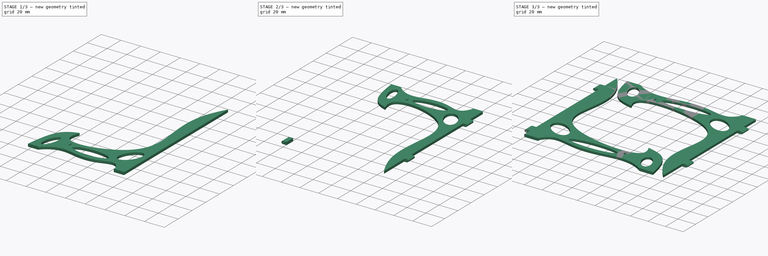
[diagram: build sequence overview — one tinted view per stage of 3, left to right]
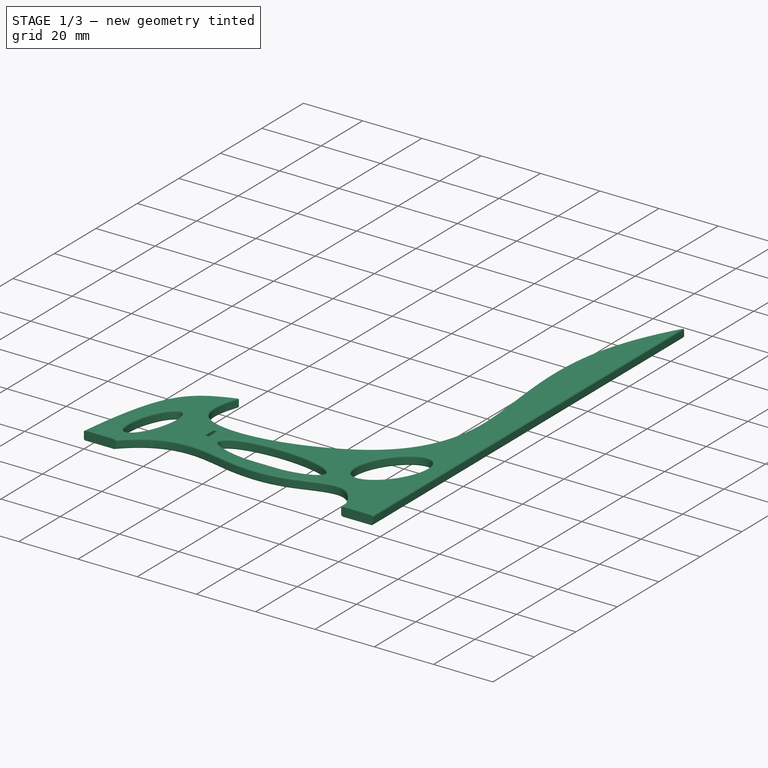
[diagram: stage 1 of 3 — iso view after this stage's code; geometry added in this stage tinted green]
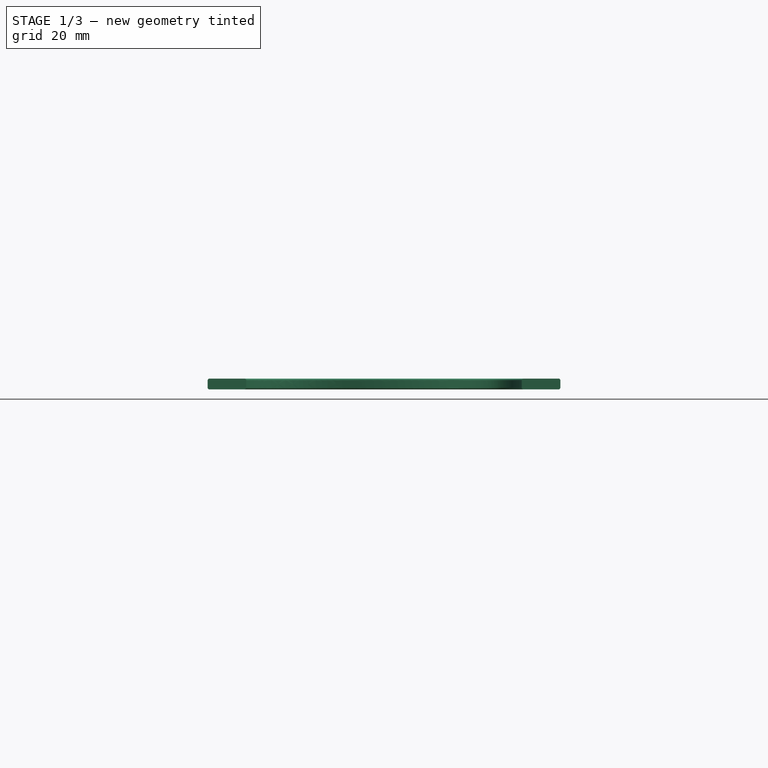
[diagram: stage 1 of 3 — front view after this stage's code; geometry added in this stage tinted green]
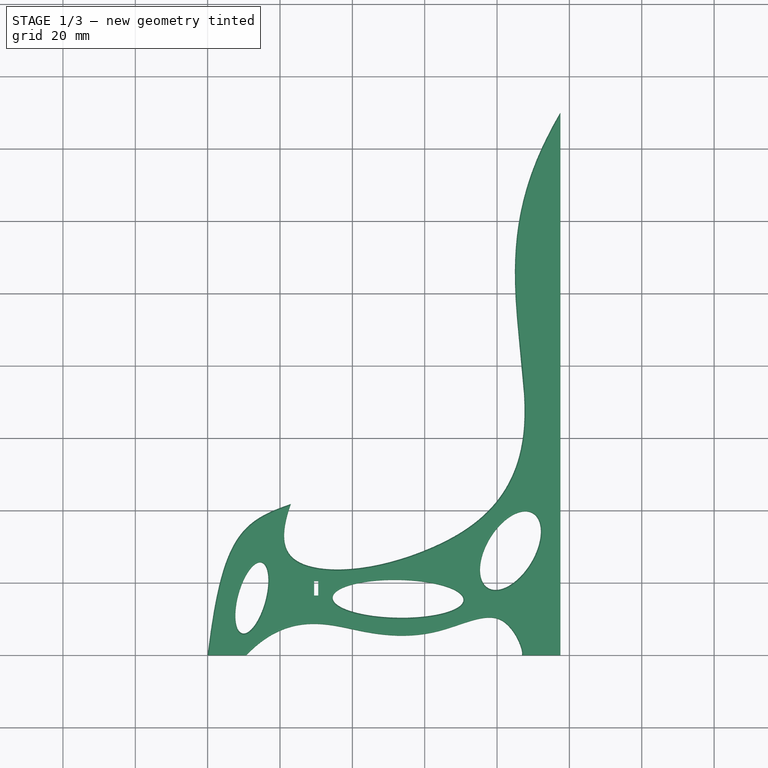
[diagram: stage 1 of 3 — top view after this stage's code; geometry added in this stage tinted green]
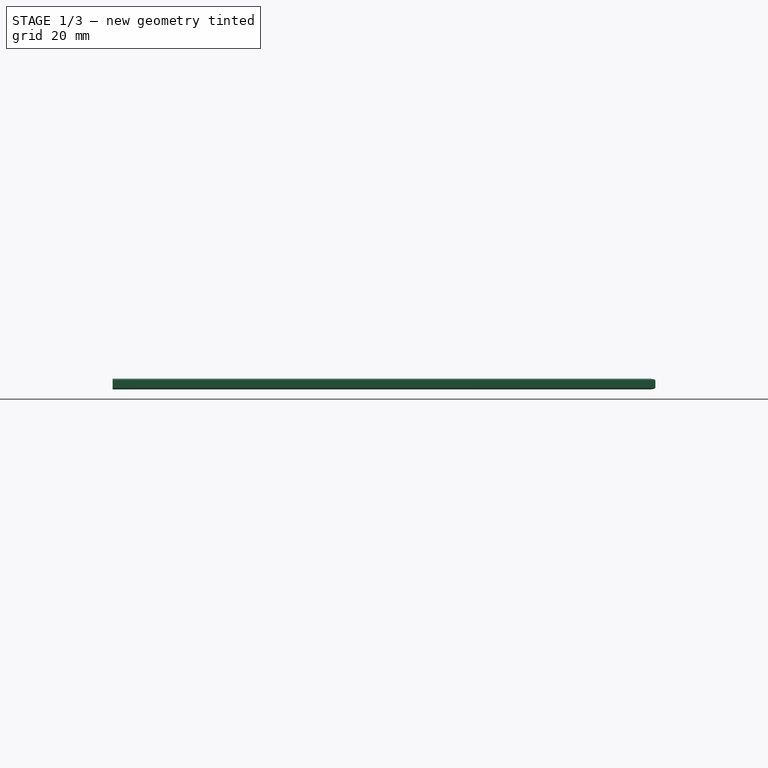
[diagram: stage 1 of 3 — right view after this stage's code; geometry added in this stage tinted green]
FCSTD DOCUMENT  (FreeCAD 0.20R27319 (Git))
Label: Plate Stand pin hinge
License: All rights reserved
LicenseURL: http://en.wikipedia.org/wiki/All_rights_reserved
objects: Part::Feature×3, Part::MultiFuse×3, Sketcher::SketchObject×2, PartDesign::Pad×2, PartDesign::Body×2, Spreadsheet::Sheet×1, PartDesign::Fillet×1, Part::Mirroring×1, Part::FeaturePython×1
note: 18 computed .brp shape members not serialized (recipe doc carries the construction recipe); baked Part::Feature solids carry a one-line shape summary decoded from their .brp

FEATURE [Spreadsheet::Sheet] Spreadsheet
  cells = A1=Height; B1(Height)=150; A2=Depth; B2(Depth)=150; A3=Thickness; B3(Thickness)=3; A4=XScale; B4(XScale)==Depth / 100; A5=YScale; B5(YScale)==Height / 150; A6=ZScale; B6(ZScale)==Thickness / 3; A7=Axle Diameter; B7(AxleDiameter)=1.5
FEATURE [Sketcher::SketchObject] Sketch  label="Right outline"
  FullyConstrained = false
  MapMode = 5
  Support = -> [XY_Plane]
  expr: Constraints[82] = 1.7 / Spreadsheet.XScale
  expr: Constraints[83] = 4 / Spreadsheet.YScale
  sketch-geometry (56):
    g0-g3: Circle x4 (B-spline internal-alignment scaffolding for g4; pole/knot coordinates omitted)
    g4: BSplineCurve PolesCount=4 KnotsCount=2 Degree=3 IsPeriodic=0
    g5: GeomPoint X=76.9837 Y=41.8126 Z=0
    g6: GeomPoint X=100 Y=0 Z=0
    g7: Ellipse CenterX=16.2979 CenterY=28.8898 CenterZ=0 NormalX=0 NormalY=0 NormalZ=1 MajorRadius=12.0183 MinorRadius=6.61155 AngleXU=-1.02723
    g8: LineSegment StartX=22.5137 StartY=18.6037 StartZ=0 EndX=10.0822 EndY=39.176 EndZ=0
    g9: LineSegment StartX=21.9566 StartY=32.3093 StartZ=0 EndX=10.6393 EndY=25.4704 EndZ=0
    g10: GeomPoint X=21.4886 Y=20.3 Z=0
    g11: GeomPoint X=11.1073 Y=37.4797 Z=0
    g12: Ellipse CenterX=87.7776 CenterY=15.8203 CenterZ=0 NormalX=0 NormalY=0 NormalZ=1 MajorRadius=10.1255 MinorRadius=3.83233 AngleXU=-1.30426
    g13: LineSegment StartX=90.4445 StartY=6.05227 StartZ=0 EndX=85.1106 EndY=25.5883 EndZ=0
    g14: LineSegment StartX=91.4746 StartY=16.8297 StartZ=0 EndX=84.0806 EndY=14.8109 EndZ=0
    g15: GeomPoint X=90.2461 Y=6.77893 Z=0
    g16: GeomPoint X=85.309 Y=24.8616 Z=0
    g17: LineSegment StartX=2.5 StartY=0 StartZ=0 EndX=13.1879 EndY=0 EndZ=0
    g18: LineSegment StartX=100 StartY=0 StartZ=0 EndX=89.3121 EndY=0 EndZ=0
    g19-g25: Circle x7 (B-spline internal-alignment scaffolding for g26; pole/knot coordinates omitted)
    g26: BSplineCurve PolesCount=7 KnotsCount=5 Degree=3 IsPeriodic=0
    g27-g31: GeomPoint x5 (B-spline internal-alignment scaffolding for g26; pole/knot coordinates omitted)
    g32: Ellipse CenterX=47.3615 CenterY=15.5825 CenterZ=0 NormalX=0 NormalY=0 NormalZ=1 MajorRadius=18.0781 MinorRadius=5.2221 AngleXU=0.0168016
    g33: LineSegment StartX=65.437 StartY=15.8862 StartZ=0 EndX=29.2859 EndY=15.2788 EndZ=0
    g34: LineSegment StartX=47.2737 StartY=20.8039 StartZ=0 EndX=47.4492 EndY=10.3611 EndZ=0
    g35: GeomPoint X=64.6665 Y=15.8733 Z=0
    g36: GeomPoint X=30.0565 Y=15.2917 Z=0
    g37: LineSegment StartX=2.5 StartY=150 StartZ=0 EndX=2.5 EndY=0 EndZ=0
    g38-g44: Circle x7 (B-spline internal-alignment scaffolding for g45; pole/knot coordinates omitted)
    g45: BSplineCurve PolesCount=7 KnotsCount=5 Degree=3 IsPeriodic=0
    g46-g50: GeomPoint x5 (B-spline internal-alignment scaffolding for g45; pole/knot coordinates omitted)
    g51: LineSegment StartX=69.4333 StartY=20.5 StartZ=0 EndX=69.4333 EndY=16.5 EndZ=0
    g52: LineSegment StartX=69.4333 StartY=16.5 StartZ=0 EndX=70.5667 EndY=16.5 EndZ=0
    g53: LineSegment StartX=70.5667 StartY=16.5 StartZ=0 EndX=70.5667 EndY=20.5 EndZ=0
    g54: LineSegment StartX=70.5667 StartY=20.5 StartZ=0 EndX=69.4333 EndY=20.5 EndZ=0
    g55: GeomPoint X=70 Y=18.5 Z=0
  constraints (47):
    c: PointOnObject(g4,g-1)
    c: Weight(g0) = 1
    c: Equal(g0,g1)
    c: Equal(g0,g2)
    c: Equal(g0,g3)
    c: InternalAlignment(g0-g3 -> g4) x4
    c: InternalAlignment(g5,g4)
    c: InternalAlignment(g6,g4)
    c: InternalAlignment(g8-g11 -> g7) x4
    c: InternalAlignment(g13-g16 -> g12) x4
    c: PointOnObject(g17,g-1)
    c: Coincident(g18,g4)
    c: PointOnObject(g18,g-1)
    c: Equal(g17,g18)
    c: Coincident(g26,g17)
    c: Weight(g19) = 1
    c: Equal(g19,g20)
    c: PointOnObject(g20,g19)
    c: Equal(g19, g21-g25) x5
    c: Coincident(g26,g18)
    c: InternalAlignment(g19-g25 -> g26) x7
    c: InternalAlignment(g27-g31 -> g26) x5
    c: InternalAlignment(g33-g36 -> g32) x4
    c: DistanceX(g-1,g4) = 100
    c: Coincident(g37,g17)
    c: Horizontal(g17)
    c: DistanceX(g-1,g17) = 2.5
    c: Vertical(g37)
    c: DistanceY(g17,g37) = 150
    c: Weight(g38) = 1
    c: Equal(g38, g41-g44) x4
    c: Coincident(g45,g4)
    c: InternalAlignment(g38-g44 -> g45) x7
    c: InternalAlignment(g46-g50 -> g45) x5
    c: Coincident(g51,g52)
    c: Coincident(g52,g53)
    c: Coincident(g53,g54)
    c: Coincident(g54,g51)
    c: Horizontal(g52)
    c: Horizontal(g54)
    c: Vertical(g51)
    c: Vertical(g53)
    c: Symmetric(g52,g51,g55)
    c: Distance(g54) = 1.13333
    c: Distance(g51) = 4
    c: DistanceY(g55) = 18.5
    c: DistanceX(g55) = 70
FEATURE [PartDesign::Pad] Pad  label="Right"
  Direction = (0,0,1)
  Length = 3
  Length2 = 10
  Midplane = true
  Profile = -> Sketch
  ReferenceAxis = -> Sketch [N_Axis]
  Type = 0
FEATURE [PartDesign::Body] Body001  label="Hinge Half Right Lower"
  Group = -> [Sketch001,Pad001]
  Origin = -> Origin001
  Placement = pos=(0,9,0) rot=(0,0,1;0rad)
  Tip = -> Pad001
FEATURE [Part::Feature] Body001001  label="Hinge Half Right Upper"
  Placement = pos=(0,120,0) rot=(0,0,1;0rad)
  shape: bbox 5.5 x 10 x 3 mm, 7 faces (baked)
FEATURE [Part::Feature] Body001002  label="Hinge Half Left Lower"
  Placement = pos=(0,30,0) rot=(0,0,1;3.14159rad)
  shape: bbox 5.5 x 10 x 3 mm, 7 faces (baked)
FEATURE [Part::Feature] Body001001001  label="Hinge Half Left Upper"
  Placement = pos=(0,119,0) rot=(0,0,1;3.14159rad)
  shape: bbox 5.5 x 10 x 3 mm, 7 faces (baked)
FEATURE [PartDesign::Fillet] Fillet
  Base = -> Pad [Edge22,Edge19,Edge4,Edge7,Edge13,Edge12,Edge21,Edge3,Edge6,Edge18,Edge27,Edge24,Edge26,Edge23,Edge17,Edge20]
  BaseFeature = -> Pad
  Radius = 0.5
  SupportTransform = false
FEATURE [Part::Mirroring] Part__Mirroring  label="Left Body"
  Base = (0,0,0)
  Normal = (1,0,0)
  Source = -> Body
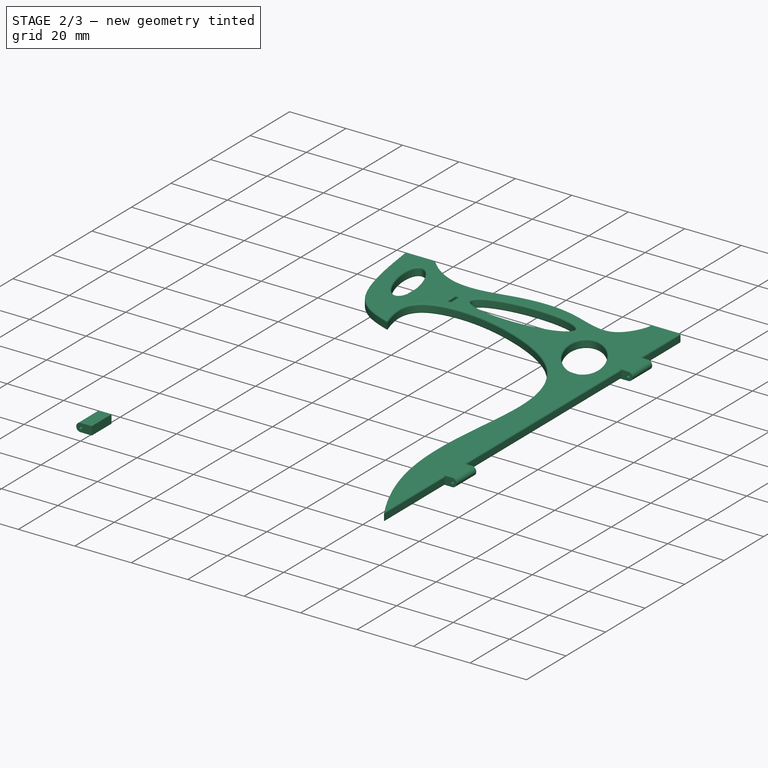
[diagram: stage 2 of 3 — iso view after this stage's code; geometry added in this stage tinted green]
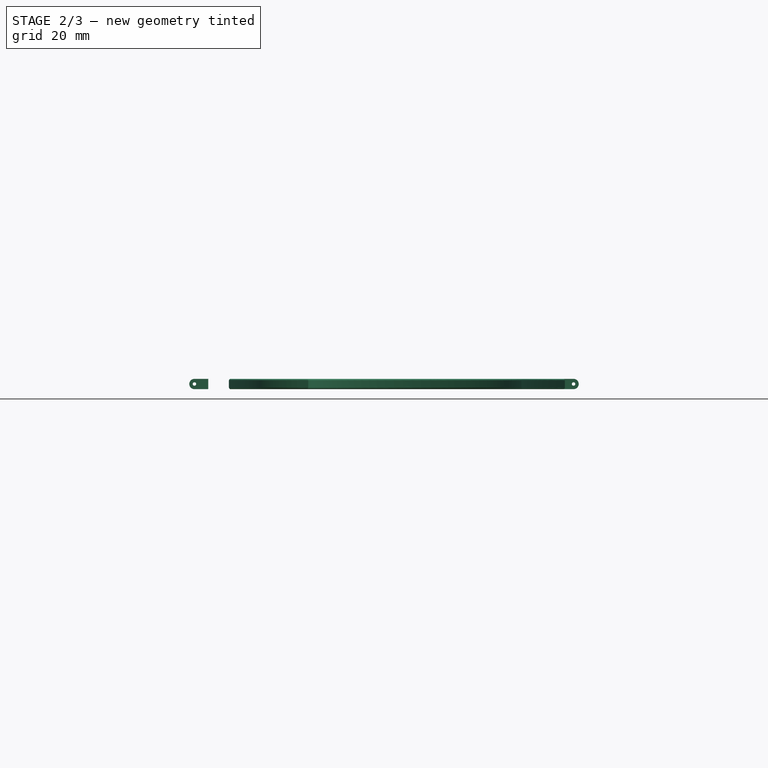
[diagram: stage 2 of 3 — front view after this stage's code; geometry added in this stage tinted green]
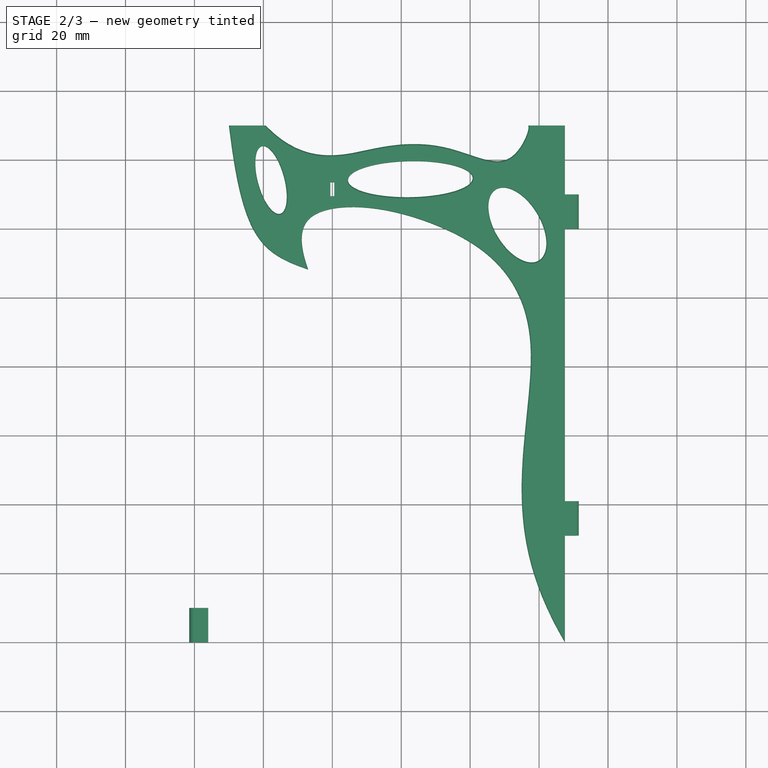
[diagram: stage 2 of 3 — top view after this stage's code; geometry added in this stage tinted green]
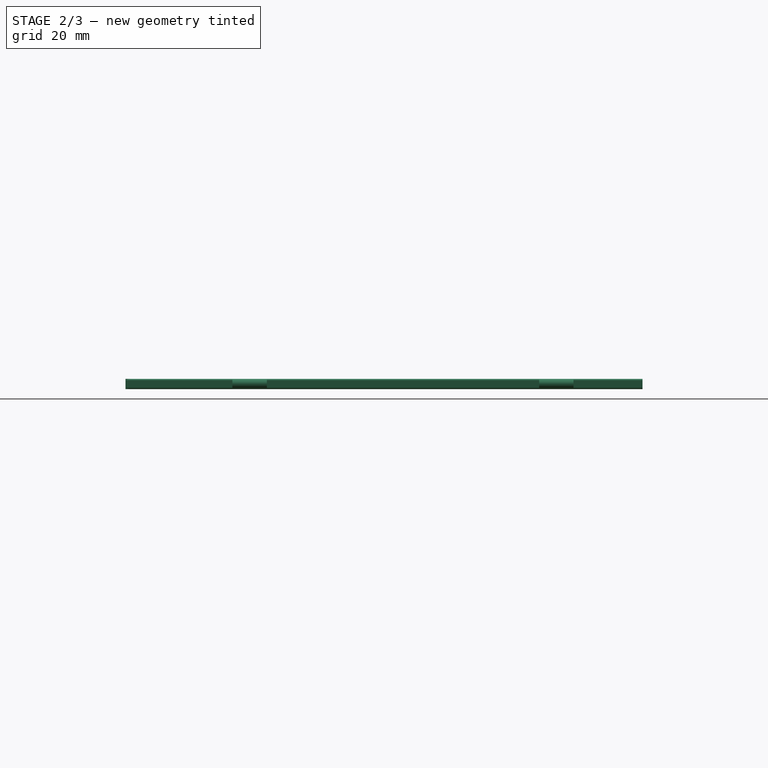
[diagram: stage 2 of 3 — right view after this stage's code; geometry added in this stage tinted green]
FEATURE [Sketcher::SketchObject] Sketch001
  FullyConstrained = true
  MapMode = 5
  Placement = pos=(0,0,0) rot=(1,0,0;1.5708rad)
  Support = -> [XZ_Plane001]
  sketch-geometry (5):
    g0: LineSegment StartX=-2e-16 StartY=1.5 StartZ=0 EndX=4 EndY=1.5 EndZ=0
    g1: LineSegment StartX=4 StartY=1.5 StartZ=0 EndX=4 EndY=-1.5 EndZ=0
    g2: LineSegment StartX=4 StartY=-1.5 StartZ=0 EndX=-4e-16 EndY=-1.5 EndZ=0
    g3: ArcOfCircle CenterX=0 CenterY=0 CenterZ=0 NormalX=0 NormalY=0 NormalZ=1 AngleXU=0 Radius=1.5 StartAngle=1.5708 EndAngle=4.71239
    g4: Circle CenterX=0 CenterY=0 CenterZ=0 NormalX=0 NormalY=0 NormalZ=1 AngleXU=0 Radius=0.5
  constraints (13):
    c: PointOnObject(g0,g-2)
    c: Horizontal(g0)
    c: Coincident(g0,g1)
    c: Vertical(g1)
    c: Coincident(g1,g2)
    c: PointOnObject(g2,g-2)
    c: Tangent(g2,g3) = 1.5708
    c: Coincident(g3,g0)
    c: Coincident(g3,g-1)
    c: Coincident(g4,g3)
    c: Diameter(g3) = 3
    c: Distance(g0) = 4
    c: Diameter(g4) = 1
FEATURE [PartDesign::Pad] Pad001
  Direction = (0,-1,-2e-16)
  Length = 10
  Length2 = 10
  Placement = pos=(0,0,0) rot=(1,0,0;1.5708rad)
  Profile = -> Sketch001
  ReferenceAxis = -> Sketch001 [N_Axis]
  Reversed = true
  Type = 0
FEATURE [Part::MultiFuse] Fusion003  label="Left Whole"
  Placement = pos=(110,150,0) rot=(1,0,0;3.14159rad)
  Shapes = -> [Body001001001,Part__Mirroring,Body001002]
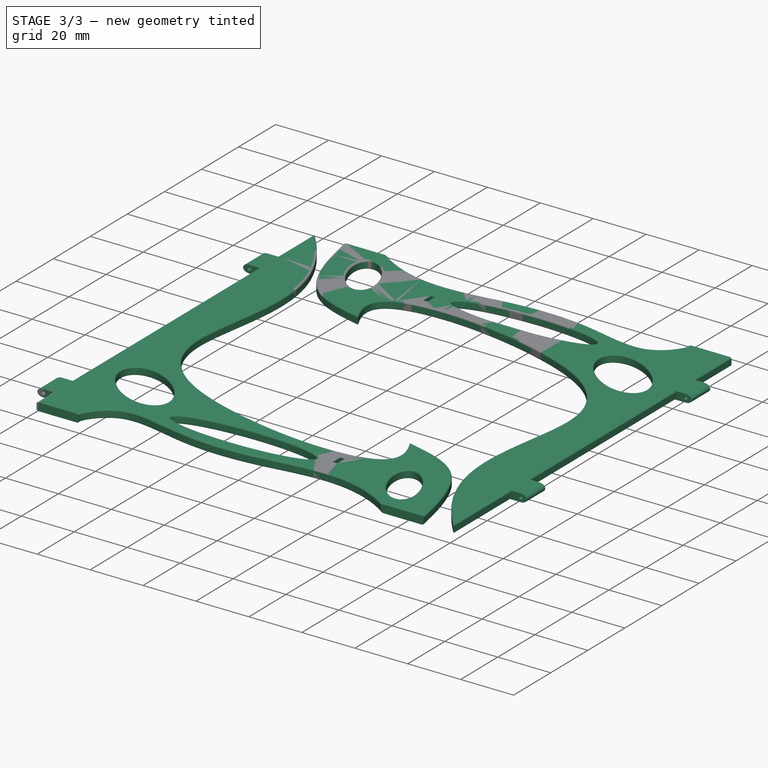
[diagram: stage 3 of 3 — iso view after this stage's code; geometry added in this stage tinted green]
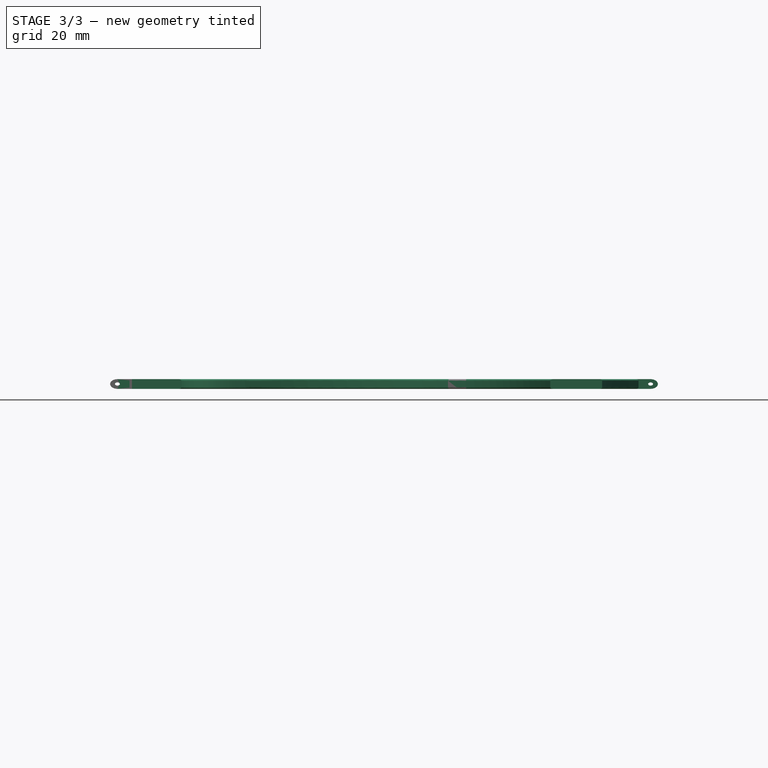
[diagram: stage 3 of 3 — front view after this stage's code; geometry added in this stage tinted green]
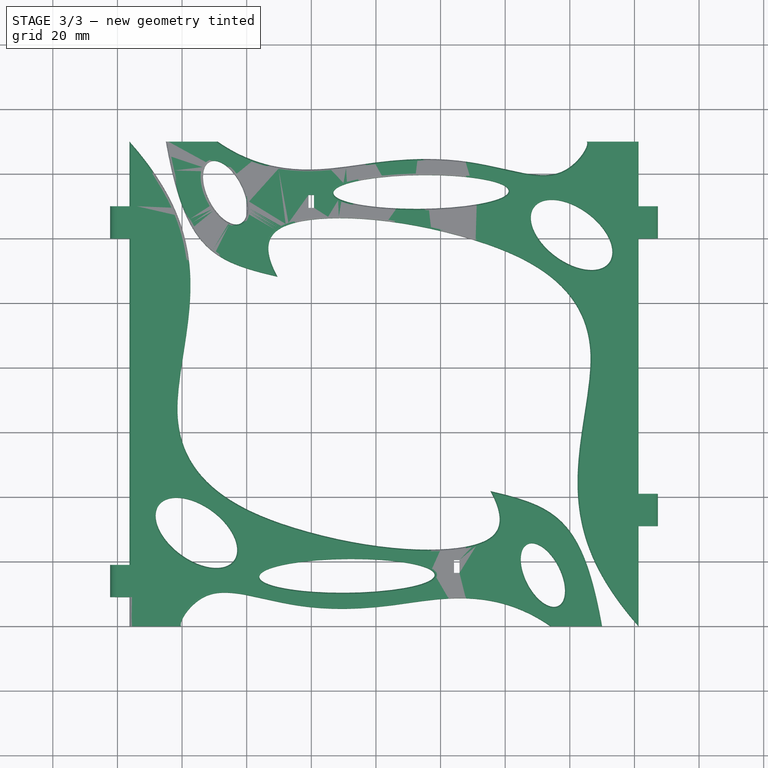
[diagram: stage 3 of 3 — top view after this stage's code; geometry added in this stage tinted green]
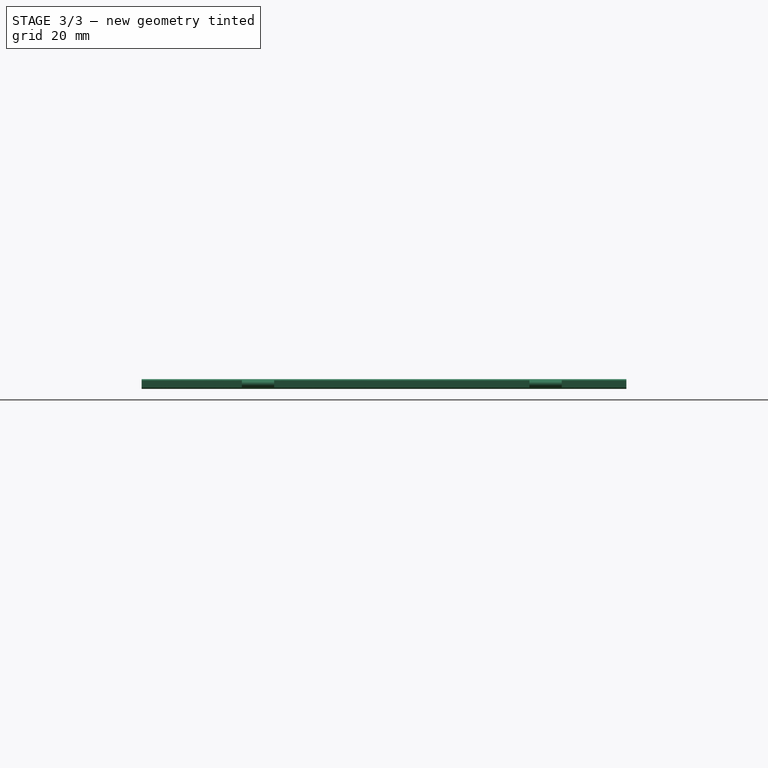
[diagram: stage 3 of 3 — right view after this stage's code; geometry added in this stage tinted green]
FEATURE [PartDesign::Body] Body  label="Right Body"
  Group = -> [Sketch,Pad,Fillet]
  Origin = -> Origin
  Tip = -> Fillet
FEATURE [Part::MultiFuse] Fusion  label="Right Whole"
  Shapes = -> [Body,Body001,Body001001]
FEATURE [Part::MultiFuse] Fusion002  label="Full Scale"
  Shapes = -> [Fusion,Fusion003]
FEATURE [Part::FeaturePython] Clone  label="Scaled Copy"  # Draft clone (typed FeaturePython)
  AttacherType = Attacher::AttachEngine3D
  Fuse = false
  Objects = -> [Fusion002]
  Scale = (1.5,1,1)
  expr: .Scale.x = Spreadsheet.XScale
  expr: .Scale.y = Spreadsheet.YScale
  expr: .Scale.z = Spreadsheet.ZScale
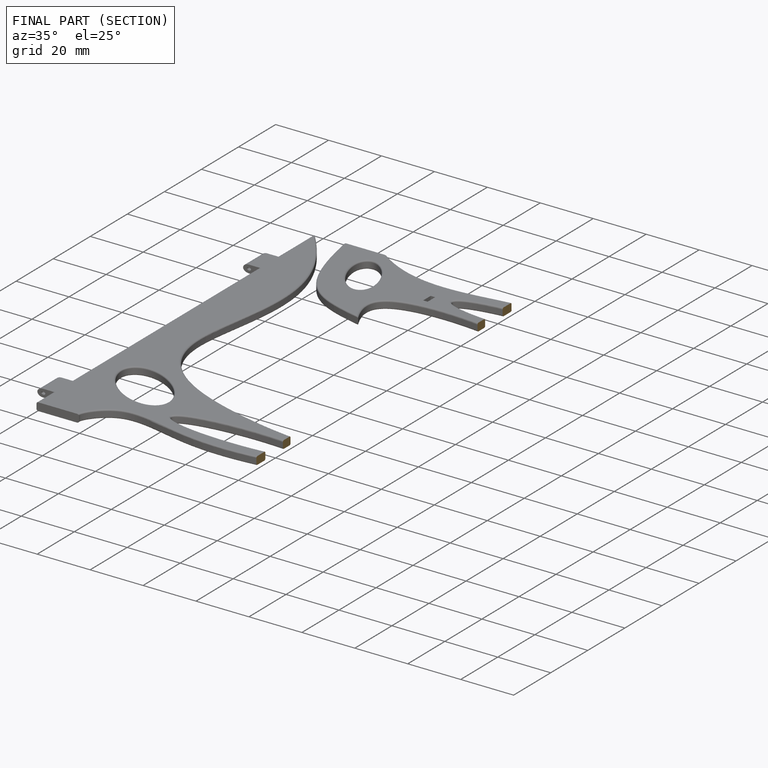
[diagram: finished part — half-section view (interior)]
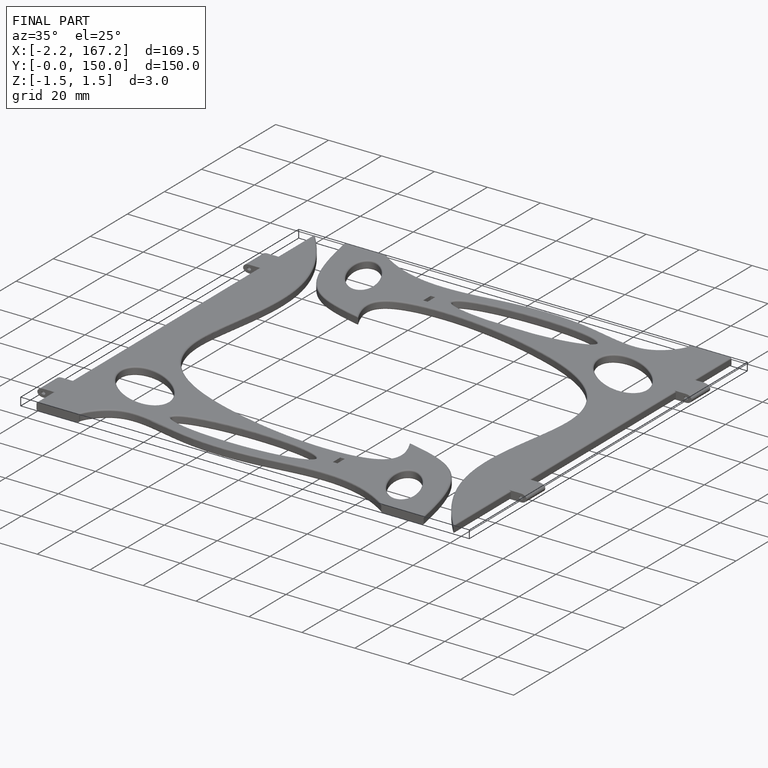
[diagram: finished part — iso view with bounding-box wireframe]
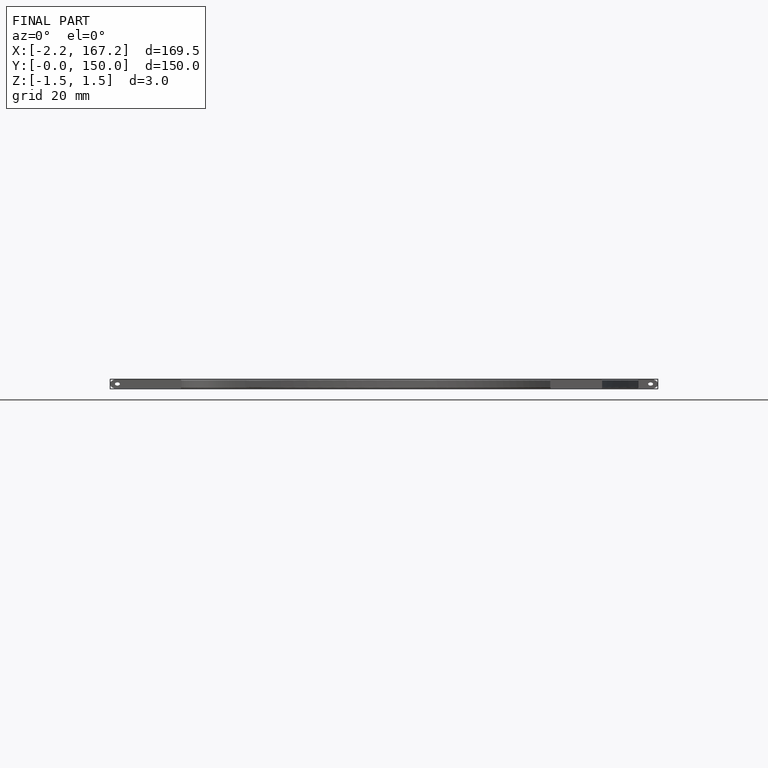
[diagram: finished part — front view with bounding-box wireframe]
